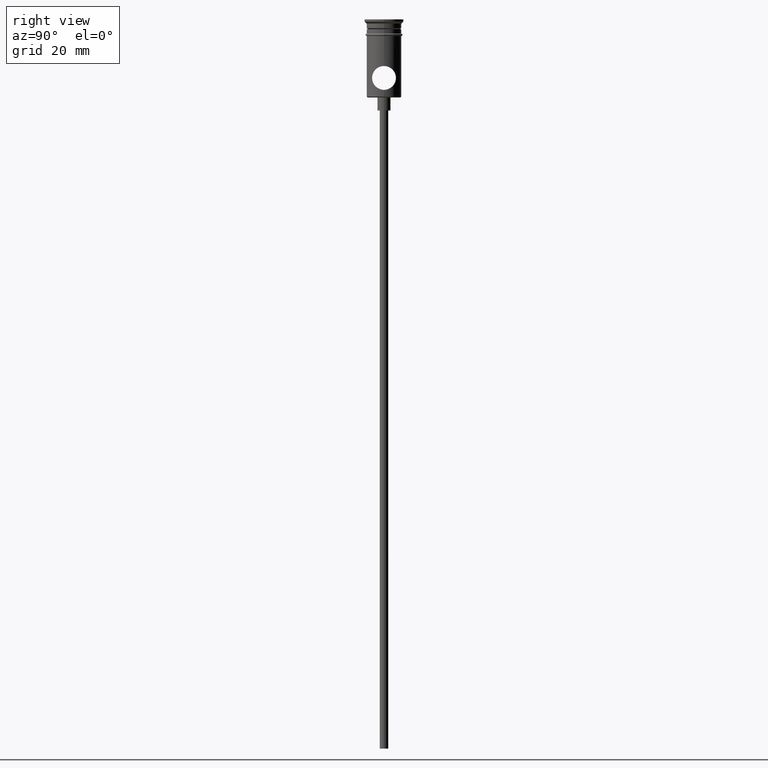
[diagram: clean part render]
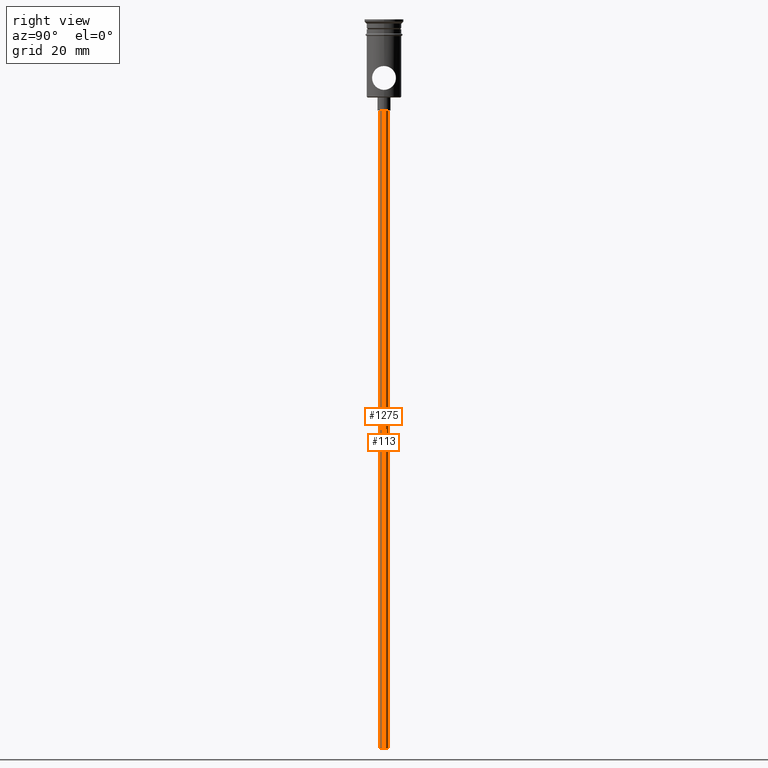
[diagram: same view with one multi-face feature highlighted, each face labeled with its STEP entity id]
A machine part, right view. The highlighted faces form ONE feature: a constant-radius fillet chain: 2 tangent blend faces with common blend radius 1 mm. The faces share edges in the B-rep.
Their STEP definitions:
[1] entity #113 (Cylinder):
#13 = CARTESIAN_POINT ( 'NONE',  ( -0.9999999999999997780, 1.224646799147352961E-16, -167.9999999999999716 ) ) ;
#95 = ORIENTED_EDGE ( 'NONE', *, *, #892, .F. ) ;
#113 = ADVANCED_FACE ( 'NONE', ( #722 ), #929, .T. ) ;
#128 = CARTESIAN_POINT ( 'NONE',  ( -0.9999999999999997780, 1.224646799147352961E-16, -167.9999999999999716 ) ) ;
#140 = LINE ( 'NONE', #128, #1029 ) ;
#260 = LINE ( 'NONE', #591, #1025 ) ;
#272 = VERTEX_POINT ( 'NONE', #13 ) ;
#298 = EDGE_CURVE ( 'NONE', #1133, #735, #260, .T. ) ;
#393 = CIRCLE ( 'NONE', #486, 0.9999999999999997780 ) ;
#414 = CARTESIAN_POINT ( 'NONE',  ( 0.000000000000000000, 0.000000000000000000, -167.9999999999999716 ) ) ;
#422 = DIRECTION ( 'NONE',  ( 1.000000000000000000, 0.000000000000000000, 0.000000000000000000 ) ) ;
#486 = AXIS2_PLACEMENT_3D ( 'NONE', #957, #1183, #1411 ) ;
#531 = DIRECTION ( 'NONE',  ( 0.000000000000000000, 0.000000000000000000, -1.000000000000000000 ) ) ;
#591 = CARTESIAN_POINT ( 'NONE',  ( 0.9999999999999997780, 0.000000000000000000, -167.9999999999999716 ) ) ;
#705 = EDGE_LOOP ( 'NONE', ( #95, #750, #1268, #1414 ) ) ;
#722 = FACE_OUTER_BOUND ( 'NONE', #705, .T. ) ;
#735 = VERTEX_POINT ( 'NONE', #1152 ) ;
#739 = CARTESIAN_POINT ( 'NONE',  ( 0.000000000000000000, 0.000000000000000000, -20.99999999999999645 ) ) ;
#750 = ORIENTED_EDGE ( 'NONE', *, *, #1331, .T. ) ;
#864 = EDGE_CURVE ( 'NONE', #1145, #735, #1125, .T. ) ;
#868 = DIRECTION ( 'NONE',  ( -0.000000000000000000, -0.000000000000000000, 1.000000000000000000 ) ) ;
#889 = AXIS2_PLACEMENT_3D ( 'NONE', #414, #1065, #422 ) ;
#892 = EDGE_CURVE ( 'NONE', #272, #1133, #393, .T. ) ;
#897 = AXIS2_PLACEMENT_3D ( 'NONE', #739, #531, #1395 ) ;
#911 = CARTESIAN_POINT ( 'NONE',  ( 0.9999999999999997780, 0.000000000000000000, -167.9999999999999716 ) ) ;
#929 = CYLINDRICAL_SURFACE ( 'NONE', #889, 0.9999999999999997780 ) ;
#957 = CARTESIAN_POINT ( 'NONE',  ( 0.000000000000000000, 0.000000000000000000, -167.9999999999999716 ) ) ;
#1025 = VECTOR ( 'NONE', #1262, 1000.000000000000000 ) ;
#1029 = VECTOR ( 'NONE', #868, 1000.000000000000000 ) ;
#1065 = DIRECTION ( 'NONE',  ( -0.000000000000000000, -0.000000000000000000, 1.000000000000000000 ) ) ;
#1125 = CIRCLE ( 'NONE', #897, 0.9999999999999997780 ) ;
#1133 = VERTEX_POINT ( 'NONE', #911 ) ;
#1145 = VERTEX_POINT ( 'NONE', #1407 ) ;
#1152 = CARTESIAN_POINT ( 'NONE',  ( 0.9999999999999997780, 0.000000000000000000, -20.99999999999999645 ) ) ;
#1183 = DIRECTION ( 'NONE',  ( 0.000000000000000000, 0.000000000000000000, -1.000000000000000000 ) ) ;
#1262 = DIRECTION ( 'NONE',  ( -0.000000000000000000, -0.000000000000000000, 1.000000000000000000 ) ) ;
#1268 = ORIENTED_EDGE ( 'NONE', *, *, #864, .T. ) ;
#1331 = EDGE_CURVE ( 'NONE', #272, #1145, #140, .T. ) ;
#1395 = DIRECTION ( 'NONE',  ( -1.000000000000000000, 0.000000000000000000, 0.000000000000000000 ) ) ;
#1407 = CARTESIAN_POINT ( 'NONE',  ( -0.9999999999999997780, 1.224646799147352961E-16, -20.99999999999999645 ) ) ;
#1411 = DIRECTION ( 'NONE',  ( -1.000000000000000000, 0.000000000000000000, 0.000000000000000000 ) ) ;
#1414 = ORIENTED_EDGE ( 'NONE', *, *, #298, .F. ) ;
[2] entity #1275 (Cylinder):
#7 = DIRECTION ( 'NONE',  ( -1.000000000000000000, 0.000000000000000000, 0.000000000000000000 ) ) ;
#13 = CARTESIAN_POINT ( 'NONE',  ( -0.9999999999999997780, 1.224646799147352961E-16, -167.9999999999999716 ) ) ;
#82 = CYLINDRICAL_SURFACE ( 'NONE', #1348, 0.9999999999999997780 ) ;
#109 = ORIENTED_EDGE ( 'NONE', *, *, #1398, .T. ) ;
#128 = CARTESIAN_POINT ( 'NONE',  ( -0.9999999999999997780, 1.224646799147352961E-16, -167.9999999999999716 ) ) ;
#140 = LINE ( 'NONE', #128, #1029 ) ;
#152 = AXIS2_PLACEMENT_3D ( 'NONE', #993, #762, #7 ) ;
#164 = DIRECTION ( 'NONE',  ( 0.000000000000000000, 0.000000000000000000, -1.000000000000000000 ) ) ;
#260 = LINE ( 'NONE', #591, #1025 ) ;
#272 = VERTEX_POINT ( 'NONE', #13 ) ;
#298 = EDGE_CURVE ( 'NONE', #1133, #735, #260, .T. ) ;
#343 = DIRECTION ( 'NONE',  ( 1.000000000000000000, 0.000000000000000000, 0.000000000000000000 ) ) ;
#360 = EDGE_CURVE ( 'NONE', #1133, #272, #621, .T. ) ;
#519 = CARTESIAN_POINT ( 'NONE',  ( 0.000000000000000000, 0.000000000000000000, -167.9999999999999716 ) ) ;
#528 = ORIENTED_EDGE ( 'NONE', *, *, #298, .T. ) ;
#550 = EDGE_LOOP ( 'NONE', ( #1238, #846, #528, #109 ) ) ;
#581 = CARTESIAN_POINT ( 'NONE',  ( 0.000000000000000000, 0.000000000000000000, -167.9999999999999716 ) ) ;
#591 = CARTESIAN_POINT ( 'NONE',  ( 0.9999999999999997780, 0.000000000000000000, -167.9999999999999716 ) ) ;
#621 = CIRCLE ( 'NONE', #1101, 0.9999999999999997780 ) ;
#735 = VERTEX_POINT ( 'NONE', #1152 ) ;
#762 = DIRECTION ( 'NONE',  ( 0.000000000000000000, 0.000000000000000000, -1.000000000000000000 ) ) ;
#799 = DIRECTION ( 'NONE',  ( -1.000000000000000000, 0.000000000000000000, 0.000000000000000000 ) ) ;
#828 = FACE_OUTER_BOUND ( 'NONE', #550, .T. ) ;
#846 = ORIENTED_EDGE ( 'NONE', *, *, #360, .F. ) ;
#868 = DIRECTION ( 'NONE',  ( -0.000000000000000000, -0.000000000000000000, 1.000000000000000000 ) ) ;
#911 = CARTESIAN_POINT ( 'NONE',  ( 0.9999999999999997780, 0.000000000000000000, -167.9999999999999716 ) ) ;
#946 = DIRECTION ( 'NONE',  ( -0.000000000000000000, -0.000000000000000000, 1.000000000000000000 ) ) ;
#993 = CARTESIAN_POINT ( 'NONE',  ( 0.000000000000000000, 0.000000000000000000, -20.99999999999999645 ) ) ;
#1025 = VECTOR ( 'NONE', #1262, 1000.000000000000000 ) ;
#1029 = VECTOR ( 'NONE', #868, 1000.000000000000000 ) ;
#1101 = AXIS2_PLACEMENT_3D ( 'NONE', #581, #164, #799 ) ;
#1133 = VERTEX_POINT ( 'NONE', #911 ) ;
#1145 = VERTEX_POINT ( 'NONE', #1407 ) ;
#1152 = CARTESIAN_POINT ( 'NONE',  ( 0.9999999999999997780, 0.000000000000000000, -20.99999999999999645 ) ) ;
#1238 = ORIENTED_EDGE ( 'NONE', *, *, #1331, .F. ) ;
#1262 = DIRECTION ( 'NONE',  ( -0.000000000000000000, -0.000000000000000000, 1.000000000000000000 ) ) ;
#1275 = ADVANCED_FACE ( 'NONE', ( #828 ), #82, .T. ) ;
#1331 = EDGE_CURVE ( 'NONE', #272, #1145, #140, .T. ) ;
#1348 = AXIS2_PLACEMENT_3D ( 'NONE', #519, #946, #343 ) ;
#1368 = CIRCLE ( 'NONE', #152, 0.9999999999999997780 ) ;
#1398 = EDGE_CURVE ( 'NONE', #735, #1145, #1368, .T. ) ;
#1407 = CARTESIAN_POINT ( 'NONE',  ( -0.9999999999999997780, 1.224646799147352961E-16, -20.99999999999999645 ) ) ;